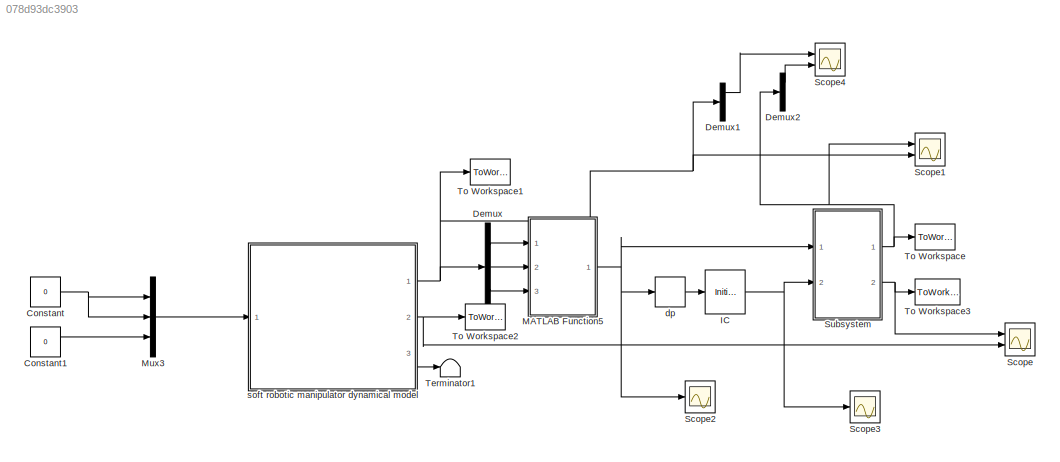
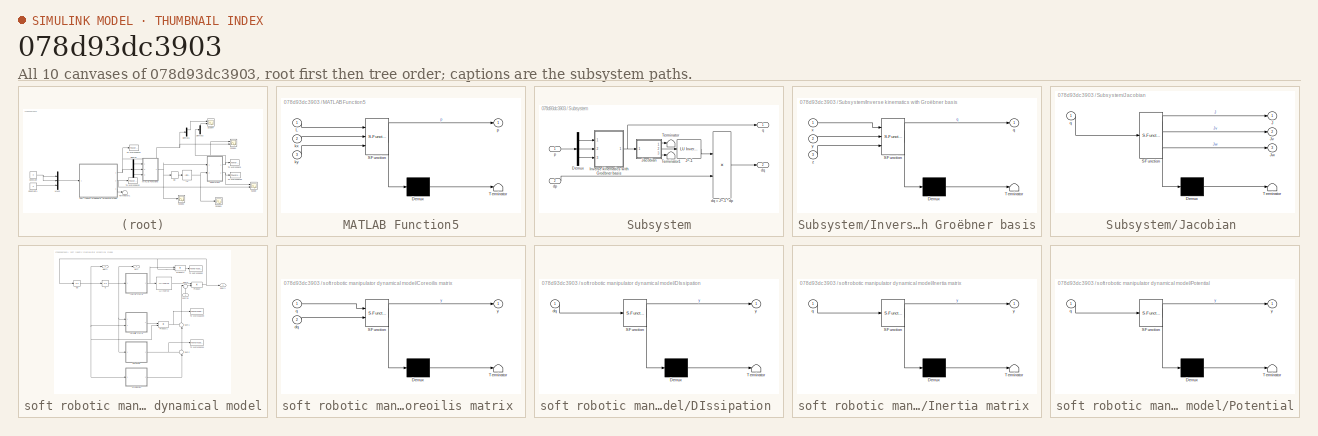
[diagram: thumbnail index - all 10 canvases of the model, root first then tree order]
MODEL slx_078d93dc3903
KIND model
CONFIG AbsTol = auto
CONFIG EnableMultiTasking = off
CONFIG FixedStep = auto
CONFIG MaxStep = auto
CONFIG MinStep = auto
CONFIG RelTol = 1e-3
CONFIG SampleTimeConstraint = Unconstrained
CONFIG Solver = VariableStepAuto
CONFIG SolverName = VariableStepAuto
CONFIG StartTime = 0.0
CONFIG StopTime = 10.0
BLOCK [Constant] Constant
  Value = 0
BLOCK [Constant] Constant1
  Value = 0
BLOCK [Demux] Demux
  DisplayOption = bar
  Outputs = 3
  Ports = [1, 3]
BLOCK [Demux] Demux1
  DisplayOption = bar
  Outputs = 3
  Ports = [1, 3]
BLOCK [Demux] Demux2
  DisplayOption = bar
  Outputs = 3
  Ports = [1, 3]
BLOCK [InitialCondition] IC
  Value = [1.3693551715, 0,0]
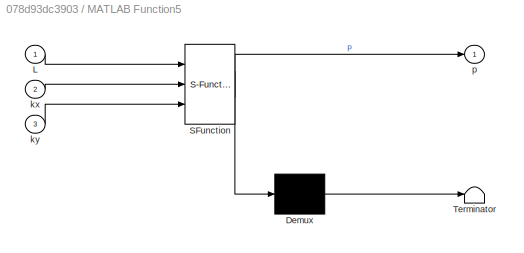
BLOCK [SubSystem] MATLAB Function5
  ErrorFcn = Stateflow.Translate.translate
  PermitHierarchicalResolution = ExplicitOnly
  Ports = [3, 1]
  RequestExecContextInheritance = off
  SFBlockType = MATLAB Function
  TreatAsAtomicUnit = on
  Variant = off
BLOCK [Demux] MATLAB Function5/ Demux 
  Outputs = 1
  Ports = [1, 1]
BLOCK [S-Function] MATLAB Function5/ SFunction 
  EnableBusSupport = on
  FunctionName = sf_sfun
  PortCounts = [3 2]
  Ports = [3, 2]
  SFcnIsStateOwnerBlock = off
  SFunctionDeploymentMode = off
  Tag = Stateflow S-Function dynamical_model_extended 9
BLOCK [Terminator] MATLAB Function5/ Terminator 
BLOCK [Inport] MATLAB Function5/L
  IconDisplay = Port number
BLOCK [Inport] MATLAB Function5/kx
  IconDisplay = Port number
  Port = 2
BLOCK [Inport] MATLAB Function5/ky
  IconDisplay = Port number
  Port = 3
BLOCK [Outport] MATLAB Function5/p
  IconDisplay = Port number
BLOCK [Mux] Mux3
  DisplayOption = bar
  Inputs = 3
  Ports = [3, 1]
BLOCK [Scope] Scope
  NumInputPorts = 2
  Ports = [2]
  ScopeSpecificationString = Simulink.scopes.TimeScopeBlockCfg('CurrentConfiguration', extmgr.ConfigurationSet(extmgr.Configuration('Core','General UI',true),extmgr.Configuration('Core','Source UI',true),extmgr.Configuration('Sources','WiredSimulink',true),extmgr.Configuration('Visuals','Time Domain',true,'SerializedDisplays',{struct('MinYLimReal','0.00746','MaxYLimReal','0.00779','YLabelReal','','MinYLimMag','0.00746','MaxYL...<+1780ch>
BLOCK [Scope] Scope1
  NumInputPorts = 2
  Ports = [2]
  ScopeSpecificationString = Simulink.scopes.TimeScopeBlockCfg('CurrentConfiguration', extmgr.ConfigurationSet(extmgr.Configuration('Core','General UI',true),extmgr.Configuration('Core','Source UI',true),extmgr.Configuration('Sources','WiredSimulink',true,'DataLoggingVariableName','ScopeData1'),extmgr.Configuration('Visuals','Time Domain',true,'SerializedDisplays',{struct('MinYLimReal','0.12222','MaxYLimReal','0.1252','YLabel...<+1787ch>
BLOCK [Scope] Scope2
  NumInputPorts = 1
  Ports = [1]
  ScopeSpecificationString = Simulink.scopes.TimeScopeBlockCfg('CurrentConfiguration', extmgr.ConfigurationSet(extmgr.Configuration('Core','General UI',true),extmgr.Configuration('Core','Source UI',true),extmgr.Configuration('Sources','WiredSimulink',true,'DataLoggingVariableName','ScopeData3'),extmgr.Configuration('Visuals','Time Domain',true,'SerializedDisplays',{struct('MinYLimReal','-1.49975','MaxYLimReal','1.60139','YLab...<+1597ch>
BLOCK [Scope] Scope3
  NumInputPorts = 1
  Ports = [1]
  ScopeSpecificationString = Simulink.scopes.TimeScopeBlockCfg('CurrentConfiguration', extmgr.ConfigurationSet(extmgr.Configuration('Core','General UI',true),extmgr.Configuration('Core','Source UI',true),extmgr.Configuration('Sources','WiredSimulink',true,'DataLoggingVariableName','ScopeData4'),extmgr.Configuration('Visuals','Time Domain',true,'SerializedDisplays',{struct('MinYLimReal','-1.65676','MaxYLimReal','1.70559','YLab...<+1541ch>
BLOCK [Scope] Scope4
  NumInputPorts = 2
  Ports = [2]
  ScopeSpecificationString = Simulink.scopes.TimeScopeBlockCfg('CurrentConfiguration', extmgr.ConfigurationSet(extmgr.Configuration('Core','General UI',true),extmgr.Configuration('Core','Source UI',true),extmgr.Configuration('Sources','WiredSimulink',true,'DataLoggingVariableName','ScopeData1'),extmgr.Configuration('Visuals','Time Domain',true,'SerializedDisplays',{struct('MinYLimReal','0.12156','MaxYLimReal','0.12802','YLabe...<+1472ch>
BLOCK [SubSystem] Subsystem
  Ports = [2, 2]
  RequestExecContextInheritance = off
  Variant = off
BLOCK [Reference] Subsystem/ J^-1  REF=dspinverses/ LU Inverse
  Ports = [1, 1]
  SourceBlock = dspinverses/ LU Inverse
  SourceProductBaseCode = DS
  SourceProductName = DSP System Toolbox
  SourceType = LU Inverse
BLOCK [Demux] Subsystem/Demux
  DisplayOption = bar
  Outputs = 3
  Ports = [1, 3]
BLOCK [SubSystem] Subsystem/Inverse kinematics with Groëbner basis
  ErrorFcn = Stateflow.Translate.translate
  PermitHierarchicalResolution = ExplicitOnly
  Ports = [3, 1]
  RequestExecContextInheritance = off
  SFBlockType = MATLAB Function
  TreatAsAtomicUnit = on
  Variant = off
BLOCK [Demux] Subsystem/Inverse kinematics with Groëbner basis/ Demux 
  Outputs = 1
  Ports = [1, 1]
BLOCK [S-Function] Subsystem/Inverse kinematics with Groëbner basis/ SFunction 
  EnableBusSupport = on
  FunctionName = sf_sfun
  PortCounts = [3 2]
  Ports = [3, 2]
  SFcnIsStateOwnerBlock = off
  SFunctionDeploymentMode = off
  Tag = Stateflow S-Function dynamical_model_extended 6
BLOCK [Terminator] Subsystem/Inverse kinematics with Groëbner basis/ Terminator 
BLOCK [Outport] Subsystem/Inverse kinematics with Groëbner basis/q
  IconDisplay = Port number
BLOCK [Inport] Subsystem/Inverse kinematics with Groëbner basis/x
  IconDisplay = Port number
BLOCK [Inport] Subsystem/Inverse kinematics with Groëbner basis/y
  IconDisplay = Port number
  Port = 2
BLOCK [Inport] Subsystem/Inverse kinematics with Groëbner basis/z
  IconDisplay = Port number
  Port = 3
BLOCK [SubSystem] Subsystem/Jacobian 
  ErrorFcn = Stateflow.Translate.translate
  PermitHierarchicalResolution = ExplicitOnly
  Ports = [1, 3]
  RequestExecContextInheritance = off
  SFBlockType = MATLAB Function
  TreatAsAtomicUnit = on
  Variant = off
BLOCK [Demux] Subsystem/Jacobian / Demux 
  Outputs = 1
  Ports = [1, 1]
BLOCK [S-Function] Subsystem/Jacobian / SFunction 
  EnableBusSupport = on
  FunctionName = sf_sfun
  PortCounts = [1 4]
  Ports = [1, 4]
  SFcnIsStateOwnerBlock = off
  SFunctionDeploymentMode = off
  Tag = Stateflow S-Function dynamical_model_extended 5
BLOCK [Terminator] Subsystem/Jacobian / Terminator 
BLOCK [Outport] Subsystem/Jacobian /J
  IconDisplay = Port number
BLOCK [Outport] Subsystem/Jacobian /Jv
  IconDisplay = Port number
  Port = 2
BLOCK [Outport] Subsystem/Jacobian /Jw
  IconDisplay = Port number
  Port = 3
BLOCK [Inport] Subsystem/Jacobian /q
  IconDisplay = Port number
BLOCK [Terminator] Subsystem/Terminator
BLOCK [Terminator] Subsystem/Terminator1
BLOCK [Inport] Subsystem/dp
  IconDisplay = Port number
  Port = 2
BLOCK [Outport] Subsystem/dq
  IconDisplay = Port number
  Port = 2
BLOCK [Product] Subsystem/dq = J^-1 * dp
  InputSameDT = off
  Multiplication = Matrix(*)
  OutDataTypeStr = Inherit: Inherit via internal rule
  Ports = [2, 1]
  RndMeth = Floor
  SaturateOnIntegerOverflow = off
BLOCK [Inport] Subsystem/p
  IconDisplay = Port number
BLOCK [Outport] Subsystem/q
  IconDisplay = Port number
BLOCK [Terminator] Terminator1
BLOCK [ToWorkspace] To Workspace
  FixptAsFi = on
  MaxDataPoints = inf
  Ports = [1]
  SampleTime = -1
  Save2DSignal = 3-D array (concatenate along third dimension)
  VariableName = q_out
BLOCK [ToWorkspace] To Workspace1
  FixptAsFi = on
  MaxDataPoints = inf
  Ports = [1]
  SampleTime = -1
  Save2DSignal = 3-D array (concatenate along third dimension)
  VariableName = q_in
BLOCK [ToWorkspace] To Workspace2
  FixptAsFi = on
  MaxDataPoints = inf
  Ports = [1]
  SampleTime = -1
  Save2DSignal = 3-D array (concatenate along third dimension)
  VariableName = dq_in
BLOCK [ToWorkspace] To Workspace3
  FixptAsFi = on
  MaxDataPoints = inf
  Ports = [1]
  SampleTime = -1
  Save2DSignal = 3-D array (concatenate along third dimension)
  VariableName = dq_out
BLOCK [Derivative] dp
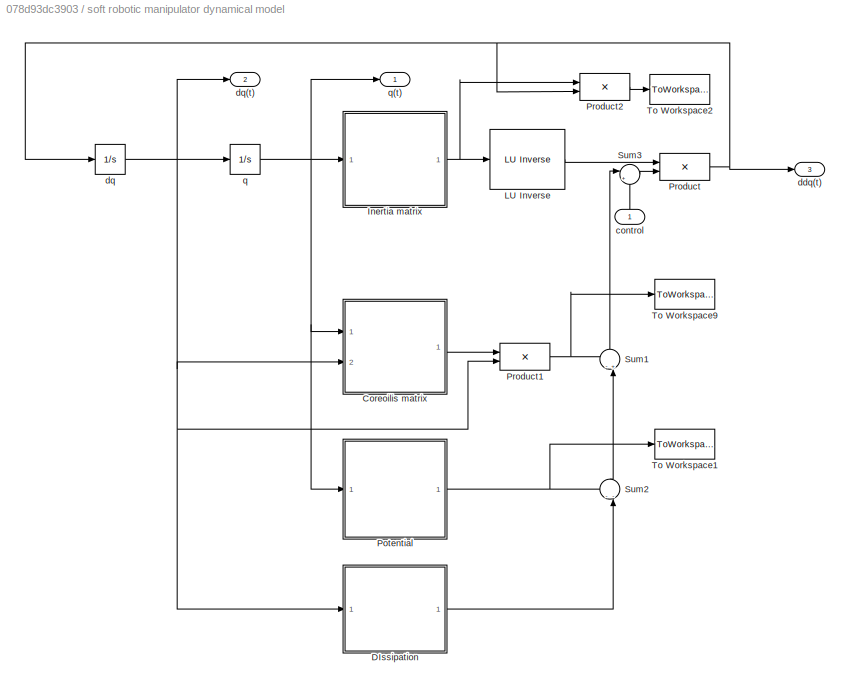
BLOCK [SubSystem] soft robotic manipulator dynamical model
  Ports = [1, 3]
  RequestExecContextInheritance = off
  Variant = off
BLOCK [Reference] soft robotic manipulator dynamical model/ LU Inverse  REF=dspinverses/ LU Inverse
  Ports = [1, 1]
  SourceBlock = dspinverses/ LU Inverse
  SourceProductBaseCode = DS
  SourceProductName = DSP System Toolbox
  SourceType = LU Inverse
BLOCK [SubSystem] soft robotic manipulator dynamical model/Coreoilis matrix 
  ErrorFcn = Stateflow.Translate.translate
  PermitHierarchicalResolution = ExplicitOnly
  Ports = [2, 1]
  RequestExecContextInheritance = off
  SFBlockType = MATLAB Function
  TreatAsAtomicUnit = on
  Variant = off
BLOCK [Demux] soft robotic manipulator dynamical model/Coreoilis matrix / Demux 
  Outputs = 1
  Ports = [1, 1]
BLOCK [S-Function] soft robotic manipulator dynamical model/Coreoilis matrix / SFunction 
  EnableBusSupport = on
  FunctionName = sf_sfun
  Parameters = m,r
  PortCounts = [2 2]
  Ports = [2, 2]
  SFcnIsStateOwnerBlock = off
  SFunctionDeploymentMode = off
  Tag = Stateflow S-Function dynamical_model_extended 1
BLOCK [Terminator] soft robotic manipulator dynamical model/Coreoilis matrix / Terminator 
BLOCK [Inport] soft robotic manipulator dynamical model/Coreoilis matrix /dq
  IconDisplay = Port number
  Port = 2
BLOCK [Inport] soft robotic manipulator dynamical model/Coreoilis matrix /q
  IconDisplay = Port number
BLOCK [Outport] soft robotic manipulator dynamical model/Coreoilis matrix /y
  IconDisplay = Port number
BLOCK [SubSystem] soft robotic manipulator dynamical model/DIssipation 
  ErrorFcn = Stateflow.Translate.translate
  PermitHierarchicalResolution = ExplicitOnly
  Ports = [1, 1]
  RequestExecContextInheritance = off
  SFBlockType = MATLAB Function
  TreatAsAtomicUnit = on
  Variant = off
BLOCK [Demux] soft robotic manipulator dynamical model/DIssipation / Demux 
  Outputs = 1
  Ports = [1, 1]
BLOCK [S-Function] soft robotic manipulator dynamical model/DIssipation / SFunction 
  EnableBusSupport = on
  FunctionName = sf_sfun
  Parameters = c1,c2,c3
  PortCounts = [1 2]
  Ports = [1, 2]
  SFcnIsStateOwnerBlock = off
  SFunctionDeploymentMode = off
  Tag = Stateflow S-Function dynamical_model_extended 4
BLOCK [Terminator] soft robotic manipulator dynamical model/DIssipation / Terminator 
BLOCK [Inport] soft robotic manipulator dynamical model/DIssipation /dq
  IconDisplay = Port number
BLOCK [Outport] soft robotic manipulator dynamical model/DIssipation /y
  IconDisplay = Port number
BLOCK [SubSystem] soft robotic manipulator dynamical model/Inertia matrix 
  ErrorFcn = Stateflow.Translate.translate
  PermitHierarchicalResolution = ExplicitOnly
  Ports = [1, 1]
  RequestExecContextInheritance = off
  SFBlockType = MATLAB Function
  TreatAsAtomicUnit = on
  Variant = off
BLOCK [Demux] soft robotic manipulator dynamical model/Inertia matrix / Demux 
  Outputs = 1
  Ports = [1, 1]
BLOCK [S-Function] soft robotic manipulator dynamical model/Inertia matrix / SFunction 
  EnableBusSupport = on
  FunctionName = sf_sfun
  Parameters = m,r
  PortCounts = [1 2]
  Ports = [1, 2]
  SFcnIsStateOwnerBlock = off
  SFunctionDeploymentMode = off
  Tag = Stateflow S-Function dynamical_model_extended 2
BLOCK [Terminator] soft robotic manipulator dynamical model/Inertia matrix / Terminator 
BLOCK [Inport] soft robotic manipulator dynamical model/Inertia matrix /q
  IconDisplay = Port number
BLOCK [Outport] soft robotic manipulator dynamical model/Inertia matrix /y
  IconDisplay = Port number
BLOCK [SubSystem] soft robotic manipulator dynamical model/Potential
  ErrorFcn = Stateflow.Translate.translate
  PermitHierarchicalResolution = ExplicitOnly
  Ports = [1, 1]
  RequestExecContextInheritance = off
  SFBlockType = MATLAB Function
  TreatAsAtomicUnit = on
  Variant = off
BLOCK [Demux] soft robotic manipulator dynamical model/Potential/ Demux 
  Outputs = 1
  Ports = [1, 1]
BLOCK [S-Function] soft robotic manipulator dynamical model/Potential/ SFunction 
  EnableBusSupport = on
  FunctionName = sf_sfun
  Parameters = alpha0,d0,g,m,p_true
  PortCounts = [1 2]
  Ports = [1, 2]
  SFcnIsStateOwnerBlock = off
  SFunctionDeploymentMode = off
  Tag = Stateflow S-Function dynamical_model_extended 3
BLOCK [Terminator] soft robotic manipulator dynamical model/Potential/ Terminator 
BLOCK [Inport] soft robotic manipulator dynamical model/Potential/q
  IconDisplay = Port number
BLOCK [Outport] soft robotic manipulator dynamical model/Potential/y
  IconDisplay = Port number
BLOCK [Product] soft robotic manipulator dynamical model/Product
  InputSameDT = off
  Multiplication = Matrix(*)
  OutDataTypeStr = Inherit: Inherit via internal rule
  Ports = [2, 1]
  RndMeth = Floor
  SaturateOnIntegerOverflow = off
BLOCK [Product] soft robotic manipulator dynamical model/Product1
  InputSameDT = off
  Multiplication = Matrix(*)
  OutDataTypeStr = Inherit: Inherit via internal rule
  Ports = [2, 1]
  RndMeth = Floor
  SaturateOnIntegerOverflow = off
BLOCK [Product] soft robotic manipulator dynamical model/Product2
  InputSameDT = off
  Multiplication = Matrix(*)
  OutDataTypeStr = Inherit: Inherit via internal rule
  Ports = [2, 1]
  RndMeth = Floor
  SaturateOnIntegerOverflow = off
BLOCK [Sum] soft robotic manipulator dynamical model/Sum1
  IconShape = round
  InputSameDT = off
  Inputs = -+|
  OutDataTypeStr = Inherit: Inherit via internal rule
  Ports = [2, 1]
  SaturateOnIntegerOverflow = off
BLOCK [Sum] soft robotic manipulator dynamical model/Sum2
  IconShape = round
  InputSameDT = off
  Inputs = --|
  OutDataTypeStr = Inherit: Inherit via internal rule
  Ports = [2, 1]
  SaturateOnIntegerOverflow = off
BLOCK [Sum] soft robotic manipulator dynamical model/Sum3
  IconShape = round
  InputSameDT = off
  Inputs = |++
  OutDataTypeStr = Inherit: Inherit via internal rule
  Ports = [2, 1]
  SaturateOnIntegerOverflow = off
BLOCK [ToWorkspace] soft robotic manipulator dynamical model/To Workspace1
  FixptAsFi = on
  MaxDataPoints = inf
  Ports = [1]
  SampleTime = -1
  Save2DSignal = 2-D array (concatenate along first dimension)
  VariableName = P_tau
BLOCK [ToWorkspace] soft robotic manipulator dynamical model/To Workspace2
  FixptAsFi = on
  MaxDataPoints = inf
  Ports = [1]
  SampleTime = -1
  Save2DSignal = 2-D array (concatenate along first dimension)
  VariableName = D_tau
BLOCK [ToWorkspace] soft robotic manipulator dynamical model/To Workspace9
  FixptAsFi = on
  MaxDataPoints = inf
  Ports = [1]
  SampleTime = -1
  Save2DSignal = 2-D array (concatenate along first dimension)
  VariableName = C_tau
BLOCK [Inport] soft robotic manipulator dynamical model/control 
  IconDisplay = Port number
BLOCK [Outport] soft robotic manipulator dynamical model/ddq(t) 
  IconDisplay = Port number
  Port = 3
BLOCK [Integrator] soft robotic manipulator dynamical model/dq
  InitialCondition = dq_0
  Ports = [1, 1]
BLOCK [Outport] soft robotic manipulator dynamical model/dq(t) 
  IconDisplay = Port number
  Port = 2
BLOCK [Integrator] soft robotic manipulator dynamical model/q
  InitialCondition = q_0
  Ports = [1, 1]
BLOCK [Outport] soft robotic manipulator dynamical model/q(t)
  IconDisplay = Port number
LINE Constant1:1 -> Mux3:3
NET Constant:1 -> Mux3:1, Mux3:2
LINE Demux1:1 -> Scope4:1
LINE Demux2:1 -> Scope4:2
LINE Demux:1 -> MATLAB Function5:1
LINE Demux:2 -> MATLAB Function5:2
LINE Demux:3 -> MATLAB Function5:3
NET IC:1 -> Scope3:1, Subsystem:2
NET MATLAB Function5:1 -> Scope2:1, Subsystem:1, dp:1
LINE Mux3:1 -> soft robotic manipulator dynamical model:1
LINE Subsystem/ J^-1:1 -> Subsystem/dq = J^-1 * dp:1
LINE Subsystem/Demux:1 -> Subsystem/Inverse kinematics with Groëbner basis:1
LINE Subsystem/Demux:2 -> Subsystem/Inverse kinematics with Groëbner basis:2
LINE Subsystem/Demux:3 -> Subsystem/Inverse kinematics with Groëbner basis:3
NET Subsystem/Inverse kinematics with Groëbner basis:1 -> Subsystem/Jacobian :1, Subsystem/q:1
LINE Subsystem/Jacobian :1 -> Subsystem/Terminator:1
LINE Subsystem/Jacobian :2 -> Subsystem/ J^-1:1
LINE Subsystem/Jacobian :3 -> Subsystem/Terminator1:1
LINE Subsystem/dp:1 -> Subsystem/dq = J^-1 * dp:2
LINE Subsystem/dq = J^-1 * dp:1 -> Subsystem/dq:1
LINE Subsystem/p:1 -> Subsystem/Demux:1
NET Subsystem:1 -> Demux2:1, Scope1:1, To Workspace:1
NET Subsystem:2 -> Scope:1, To Workspace3:1
LINE dp:1 -> IC:1
LINE soft robotic manipulator dynamical model/ LU Inverse:1 -> soft robotic manipulator dynamical model/Product:1
LINE soft robotic manipulator dynamical model/Coreoilis matrix :1 -> soft robotic manipulator dynamical model/Product1:1
LINE soft robotic manipulator dynamical model/DIssipation :1 -> soft robotic manipulator dynamical model/Sum2:2
NET soft robotic manipulator dynamical model/Inertia matrix :1 -> soft robotic manipulator dynamical model/ LU Inverse:1, soft robotic manipulator dynamical model/Product2:1
NET soft robotic manipulator dynamical model/Potential:1 -> soft robotic manipulator dynamical model/Sum2:1, soft robotic manipulator dynamical model/To Workspace1:1
NET soft robotic manipulator dynamical model/Product1:1 -> soft robotic manipulator dynamical model/Sum1:1, soft robotic manipulator dynamical model/To Workspace9:1
LINE soft robotic manipulator dynamical model/Product2:1 -> soft robotic manipulator dynamical model/To Workspace2:1
NET soft robotic manipulator dynamical model/Product:1 -> soft robotic manipulator dynamical model/Product2:2, soft robotic manipulator dynamical model/ddq(t) :1, soft robotic manipulator dynamical model/dq:1
LINE soft robotic manipulator dynamical model/Sum1:1 -> soft robotic manipulator dynamical model/Sum3:1
LINE soft robotic manipulator dynamical model/Sum2:1 -> soft robotic manipulator dynamical model/Sum1:2
LINE soft robotic manipulator dynamical model/Sum3:1 -> soft robotic manipulator dynamical model/Product:2
LINE soft robotic manipulator dynamical model/control :1 -> soft robotic manipulator dynamical model/Sum3:2
NET soft robotic manipulator dynamical model/dq:1 -> soft robotic manipulator dynamical model/Coreoilis matrix :2, soft robotic manipulator dynamical model/DIssipation :1, soft robotic manipulator dynamical model/Product1:2, soft robotic manipulator dynamical model/dq(t) :1, soft robotic manipulator dynamical model/q:1
NET soft robotic manipulator dynamical model/q:1 -> soft robotic manipulator dynamical model/Coreoilis matrix :1, soft robotic manipulator dynamical model/Inertia matrix :1, soft robotic manipulator dynamical model/Potential:1, soft robotic manipulator dynamical model/q(t):1
NET soft robotic manipulator dynamical model:1 -> Demux1:1, Demux:1, Scope1:2, To Workspace1:1
NET soft robotic manipulator dynamical model:2 -> Scope:2, To Workspace2:1
LINE soft robotic manipulator dynamical model:3 -> Terminator1:1
note: NET lines group one-source signal fan-out (src -> all destinations, sorted); 1:1 wires keep LINE
CHART soft robotic manipulator
dynamical model/Coreoilis matrix
 states=1 transitions=1
  STATE_LABEL 'eML_blk_kernel()'
  STATE_LABEL 'SCRIPT:\nfunction y = fcn(q,dq,m,r)\n\nl1 = q(1);\nkappa_x1 = q(2);\nkappa_y1 = q(3);\n\ndl1 = dq(1);\ndkappa_x1 = dq(2);\ndkappa_y1 = dq(3);\n\nV = zeros(3,3);\n\n% V(1,1) = (5.0e-33*dl1*m*(400000000000000000000000000000000.0*kappa_x1^2*sin(l1*(kappa_x1^2 + kappa_y1^2)^(1/2)) + 133333333333333333333333333333333.0*kappa_y1^2*l1^3*(kappa_x1^2 + kappa_y1^2)^(3/2) - 400000000000000000000000000000000.0*kappa_x1^2*...<+3608ch>'
CHART soft robotic manipulator
dynamical model/Inertia matrix
 states=1 transitions=1
  STATE_LABEL 'eML_blk_kernel()'
  STATE_LABEL 'SCRIPT:\nfunction y = fcn(q,m,r)\n\nl1 = q(1);\nkappa_x1 = q(2);\nkappa_y1 = q(3);\n\nM = zeros(3,3);\n\n% M(1,1) = (2.0*kappa_x1^2*l1*m*(kappa_x1^2 + kappa_y1^2)^(3/2) - 4.0*kappa_x1^4*m*sin(l1*(kappa_x1^2 + kappa_y1^2)^(1/2)) + 2.0*kappa_x1^4*l1*m*(kappa_x1^2 + kappa_y1^2)^(1/2) + 0.66666666666666666666666666666667*kappa_y1^4*l1^3*m*(kappa_x1^2 + kappa_y1^2)^(3/2) - 4.0*kappa_x1^2*kappa_y1^2*m*sin(l1*(ka...<+3608ch>'
CHART soft robotic manipulator
dynamical model/Potential states=1 transitions=1
  STATE_LABEL 'eML_blk_kernel()'
  STATE_LABEL 'SCRIPT:\nfunction y = fcn(q, p_true, d0, alpha0, g, m)\n\nl1 = q(1);\nkappa_x1 = q(2);\nkappa_y1 = q(3);\n\n% b1 =  1.4670;\n% b2 = -144.2928;\n% b3 = 317.2625;\n% \n% b4 =  0.0509;      \n% b5 = -0.9967;\n% b6 =  0.0554;\n\nb1 = p_true(1);\nb2 = p_true(2);\nb3 = p_true(3);\nb4 = p_true(4);\nb5 = p_true(5);\nb6 = p_true(6);\n\nG = zeros(3,1);\n\nG(1) = (g*m*sin(l1*(kappa_x1^2 + kappa_y1^2)^(1/2)))/(l1*(kappa_x1^2 + kappa...<+1054ch>'
CHART soft robotic manipulator
dynamical model/DIssipation
 states=1 transitions=1
  STATE_LABEL 'eML_blk_kernel()'
  STATE_LABEL 'SCRIPT:\nfunction y = fcn(dq,c1,c2,c3)\n\ndl1 = dq(1);\ndkappa_x1 = dq(2);\ndkappa_y1 = dq(3);\n\n\nD = zeros(3,1);\n\nD(1) = c1*dl1;\nD(2) = c2*dkappa_x1;\nD(3) = c3*dkappa_y1;\n\ny = D;'
CHART Subsystem/Jacobian  states=1 transitions=1
  STATE_LABEL 'eML_blk_kernel()'
  STATE_LABEL 'SCRIPT:\nfunction [J,Jv,Jw] = fcn(q)\nL = q(1); k_x = q(2); k_y = q(3);\n\nJ = [ (k_x*sin(L*(k_x^2 + k_y^2)^(1/2)))/(k_x^2 + k_y^2)^(1/2), (2*k_x^2*(cos(L*(k_x^2 + k_y^2)^(1/2)) - 1))/(k_x^2 + k_y^2)^2 - (cos(L*(k_x^2 + k_y^2)^(1/2)) - 1)/(k_x^2 + k_y^2) + (L*k_x^2*sin(L*(k_x^2 + k_y^2)^(1/2)))/(k_x^2 + k_y^2)^(3/2),                                                  (2*k_x*k_y*(cos(L*(k_x^2 + k_y^2)^(1...<+2308ch>'
CHART Subsystem/Inverse kinematics
 with Groëbner basis states=1 transitions=1
  STATE_LABEL 'eML_blk_kernel()'
  STATE_LABEL "SCRIPT:\nfunction q = pToq(x,y,z)\n    coder.extrinsic('warning')\n\n    if z < 0\n            warning('z<0 so the result may be wrong');\n    end\n    \n    %% Determining phi, k and l\n    phi = atan2(y,x);\n    k = 2*sqrt(x^2+y^2)/(x^2 + y^2 + z^2);\n    if k < 10^-99\n        l = z;\n    else\n        l = asin(z*k)/k;\n    end\n    \n    %% Determine kx and ky from phi and k\n    if -pi/2 < phi && phi < pi/2\n  ...<+255ch>"
CHART MATLAB Function5 states=1 transitions=1
  STATE_LABEL 'eML_blk_kernel()'
  STATE_LABEL 'SCRIPT:\nfunction p = qTop(L,kx,ky)\n    k = sqrt(kx^2 + ky^2);\n    phi = atan2(ky,kx);\n\n    p = 1/k * [(1-cos(L*k))*cos(phi);\n               (1-cos(L*k))*sin(phi);\n                  sin(L*k)           ];\n    \nend\n'
